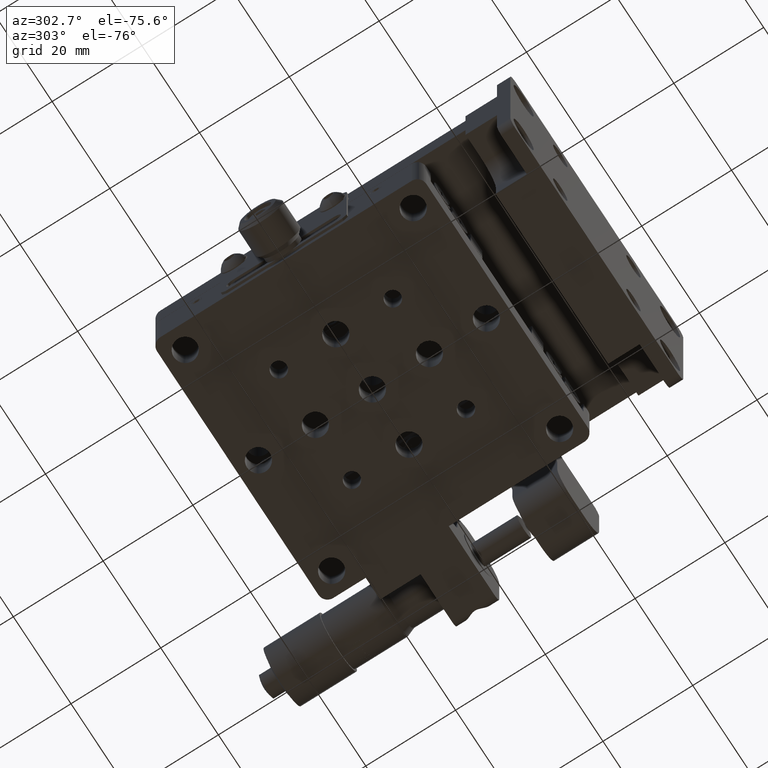
[diagram: clean part render]
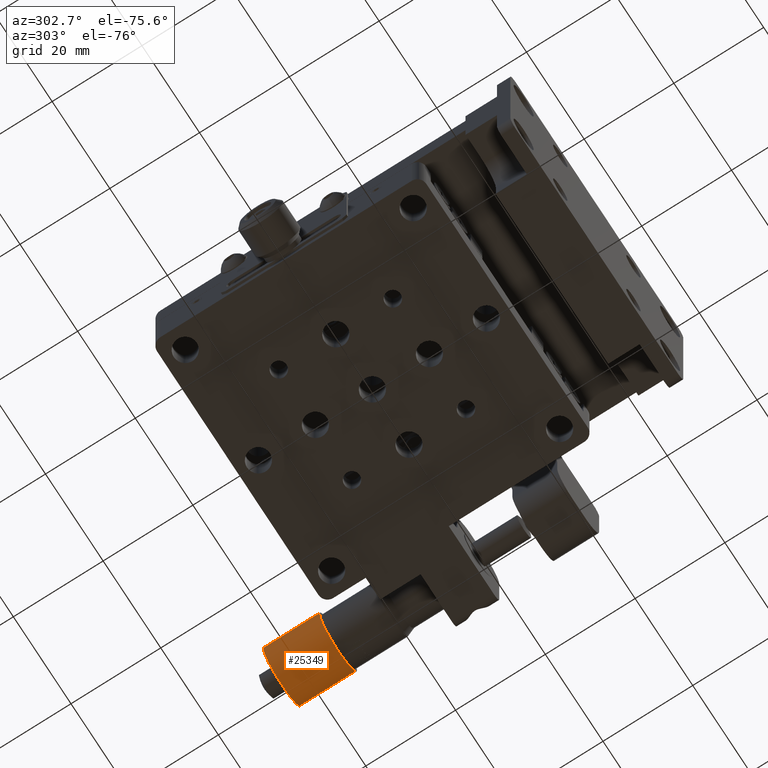
[diagram: same view with one face highlighted and labeled with its STEP entity id]
A machine part, auxiliary view. The second image highlights one B-rep face of the part: STEP entity #25349.
In plain terms, the highlighted cylindrical surface (edge-blend (fillet) strip) has radius 6.5 mm, axis along (-0, 1, -0).
Its self-contained STEP definition (entity closure, byte-faithful):
#2712 = EDGE_CURVE ( 'NONE', #38155, #47873, #24147, .T. ) ;
#3937 = LINE ( 'NONE', #39413, #5402 ) ;
#5009 = CARTESIAN_POINT ( 'NONE',  ( 34.13588438520309900, 85.79000660395603000, -2.996047779298083700 ) ) ;
#5402 = VECTOR ( 'NONE', #11825, 1000.000000000000000 ) ;
#7987 = CARTESIAN_POINT ( 'NONE',  ( 45.86411561479701500, 73.29000660395601600, -8.603952220814431200 ) ) ;
#8285 = ORIENTED_EDGE ( 'NONE', *, *, #40918, .T. ) ;
#11773 = CARTESIAN_POINT ( 'NONE',  ( 40.00000000000007100, 73.29000660395601600, -5.800000000056265900 ) ) ;
#11825 = DIRECTION ( 'NONE',  ( -1.101876641632671200E-016, 1.000000000000000000, -2.975472225002075800E-018 ) ) ;
#14559 = AXIS2_PLACEMENT_3D ( 'NONE', #11773, #48861, #25664 ) ;
#17734 = VERTEX_POINT ( 'NONE', #5009 ) ;
#17826 = CARTESIAN_POINT ( 'NONE',  ( 45.86411561479702200, 102.3310296731636600, -8.603952220814434800 ) ) ;
#19864 = ORIENTED_EDGE ( 'NONE', *, *, #2712, .F. ) ;
#22322 = CARTESIAN_POINT ( 'NONE',  ( 45.86411561479698700, 85.79000660395603000, -8.603952220814420600 ) ) ;
#22708 = VERTEX_POINT ( 'NONE', #55867 ) ;
#24147 = LINE ( 'NONE', #17826, #52073 ) ;
#25349 = ADVANCED_FACE ( 'NONE', ( #37616 ), #48701, .T. ) ;
#25664 = DIRECTION ( 'NONE',  ( -0.9021716330456850400, 0.0000000000000000000, 0.4313772647320229200 ) ) ;
#25723 = EDGE_CURVE ( 'NONE', #22708, #17734, #3937, .T. ) ;
#26773 = DIRECTION ( 'NONE',  ( -1.101876641632671200E-016, 1.000000000000000000, -2.975472225002075800E-018 ) ) ;
#30608 = ORIENTED_EDGE ( 'NONE', *, *, #25723, .T. ) ;
#35970 = ORIENTED_EDGE ( 'NONE', *, *, #45901, .F. ) ;
#37616 = FACE_OUTER_BOUND ( 'NONE', #58352, .T. ) ;
#38155 = VERTEX_POINT ( 'NONE', #7987 ) ;
#39413 = CARTESIAN_POINT ( 'NONE',  ( 34.13588438520310600, 102.3310296731636600, -2.996047779298130800 ) ) ;
#40525 = DIRECTION ( 'NONE',  ( -0.9021716330456850400, 0.0000000000000000000, 0.4313772647320229200 ) ) ;
#40918 = EDGE_CURVE ( 'NONE', #38155, #22708, #41069, .T. ) ;
#41069 = CIRCLE ( 'NONE', #14559, 6.500000000000007100 ) ;
#42034 = CIRCLE ( 'NONE', #47639, 6.500000000000007100 ) ;
#45901 = EDGE_CURVE ( 'NONE', #47873, #17734, #42034, .T. ) ;
#47639 = AXIS2_PLACEMENT_3D ( 'NONE', #48341, #58071, #48126 ) ;
#47873 = VERTEX_POINT ( 'NONE', #22322 ) ;
#48126 = DIRECTION ( 'NONE',  ( -0.9021716330456850400, 0.0000000000000000000, 0.4313772647320229200 ) ) ;
#48341 = CARTESIAN_POINT ( 'NONE',  ( 40.00000000000005700, 85.79000660395603000, -5.800000000056235700 ) ) ;
#48701 = CYLINDRICAL_SURFACE ( 'NONE', #57939, 6.500000000000007100 ) ;
#48861 = DIRECTION ( 'NONE',  ( -1.101876641632671200E-016, 1.000000000000000000, -2.975472225002075800E-018 ) ) ;
#52073 = VECTOR ( 'NONE', #60151, 1000.000000000000000 ) ;
#55867 = CARTESIAN_POINT ( 'NONE',  ( 34.13588438520311300, 73.29000660395601600, -2.996047779298114400 ) ) ;
#57939 = AXIS2_PLACEMENT_3D ( 'NONE', #59309, #26773, #40525 ) ;
#58071 = DIRECTION ( 'NONE',  ( -1.101876641632671200E-016, 1.000000000000000000, -2.975472225002075800E-018 ) ) ;
#58352 = EDGE_LOOP ( 'NONE', ( #19864, #8285, #30608, #35970 ) ) ;
#59309 = CARTESIAN_POINT ( 'NONE',  ( 40.00000000000006400, 102.3310296731636600, -5.800000000056282800 ) ) ;
#60151 = DIRECTION ( 'NONE',  ( -1.101876641632671200E-016, 1.000000000000000000, -2.975472225002075800E-018 ) ) ;